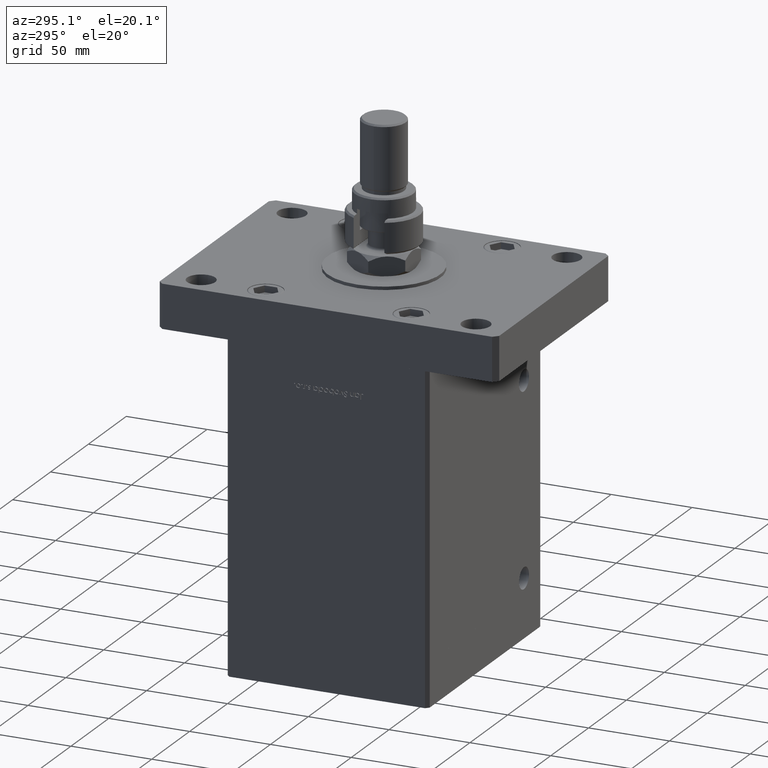
[diagram: clean part render]
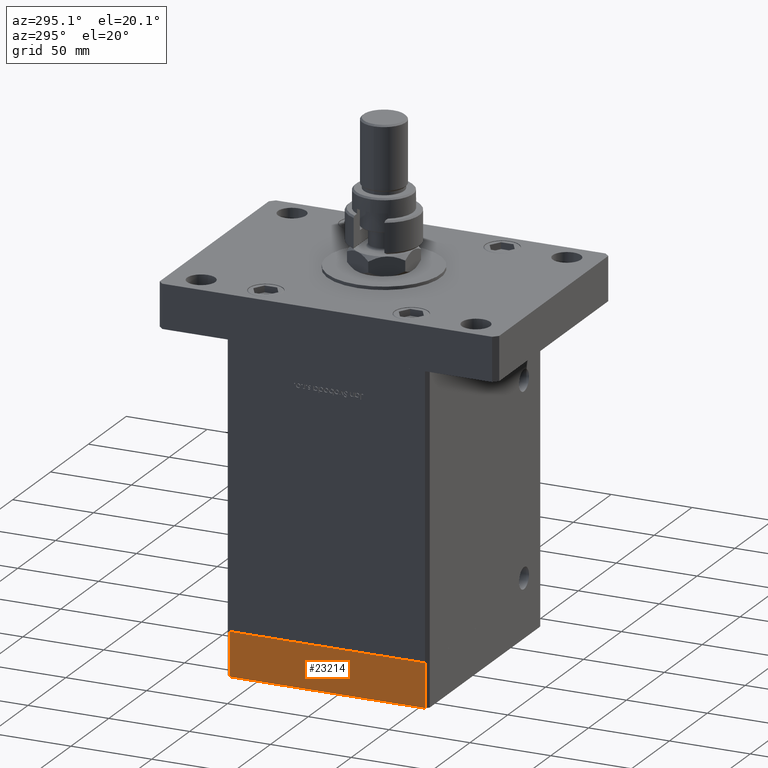
[diagram: same view with one face highlighted and labeled with its STEP entity id]
A machine part, auxiliary view. The second image highlights one B-rep face of the part: STEP entity #23214.
In plain terms, the highlighted planar face has unit normal (-1, 0, 0).
Its self-contained STEP definition (entity closure, byte-faithful):
#548 = VERTEX_POINT ( 'NONE', #55020 ) ;
#871 = CARTESIAN_POINT ( 'NONE',  ( 75.00000000000001421, -60.50000000000000711, 0.000000000000000000 ) ) ;
#964 = AXIS2_PLACEMENT_3D ( 'NONE', #1486, #18863, #12791 ) ;
#1486 = CARTESIAN_POINT ( 'NONE',  ( 75.00000000000001421, -60.50000000000000711, -27.00000000000000000 ) ) ;
#4042 = EDGE_LOOP ( 'NONE', ( #25223, #47344, #49856, #20591 ) ) ;
#4539 = DIRECTION ( 'NONE',  ( 0.000000000000000000, 0.000000000000000000, 1.000000000000000000 ) ) ;
#5819 = DIRECTION ( 'NONE',  ( -6.881547673296424104E-16, 1.000000000000000000, 0.000000000000000000 ) ) ;
#12791 = DIRECTION ( 'NONE',  ( -6.881547673296424104E-16, 1.000000000000000000, 0.000000000000000000 ) ) ;
#17629 = VECTOR ( 'NONE', #29174, 1000.000000000000000 ) ;
#18863 = DIRECTION ( 'NONE',  ( 1.000000000000000000, 6.881547673296424104E-16, -0.000000000000000000 ) ) ;
#19557 = CARTESIAN_POINT ( 'NONE',  ( 74.99999999999992895, 60.50000000000002842, -27.00000000000000000 ) ) ;
#20591 = ORIENTED_EDGE ( 'NONE', *, *, #40492, .T. ) ;
#20680 = LINE ( 'NONE', #19557, #48604 ) ;
#21460 = LINE ( 'NONE', #38870, #17629 ) ;
#22157 = VECTOR ( 'NONE', #5819, 1000.000000000000000 ) ;
#22318 = CARTESIAN_POINT ( 'NONE',  ( 74.99999999999992895, 60.50000000000002842, -27.00000000000000000 ) ) ;
#23143 = FACE_OUTER_BOUND ( 'NONE', #4042, .T. ) ;
#23214 = ADVANCED_FACE ( 'NONE', ( #23143 ), #40566, .T. ) ;
#23751 = CARTESIAN_POINT ( 'NONE',  ( 75.00000000000001421, -60.50000000000000711, 0.000000000000000000 ) ) ;
#25223 = ORIENTED_EDGE ( 'NONE', *, *, #35272, .F. ) ;
#28021 = VERTEX_POINT ( 'NONE', #871 ) ;
#29075 = VERTEX_POINT ( 'NONE', #22318 ) ;
#29174 = DIRECTION ( 'NONE',  ( -6.881547673296424104E-16, 1.000000000000000000, 0.000000000000000000 ) ) ;
#29900 = LINE ( 'NONE', #47335, #38775 ) ;
#35272 = EDGE_CURVE ( 'NONE', #28021, #42513, #44905, .T. ) ;
#36967 = DIRECTION ( 'NONE',  ( 0.000000000000000000, 0.000000000000000000, 1.000000000000000000 ) ) ;
#38775 = VECTOR ( 'NONE', #4539, 1000.000000000000000 ) ;
#38870 = CARTESIAN_POINT ( 'NONE',  ( 75.00000000000001421, -60.50000000000000711, -27.00000000000000000 ) ) ;
#40033 = EDGE_CURVE ( 'NONE', #548, #29075, #21460, .T. ) ;
#40492 = EDGE_CURVE ( 'NONE', #29075, #42513, #20680, .T. ) ;
#40566 = PLANE ( 'NONE',  #964 ) ;
#42513 = VERTEX_POINT ( 'NONE', #49749 ) ;
#44487 = EDGE_CURVE ( 'NONE', #548, #28021, #29900, .T. ) ;
#44905 = LINE ( 'NONE', #23751, #22157 ) ;
#47335 = CARTESIAN_POINT ( 'NONE',  ( 75.00000000000001421, -60.50000000000000711, -27.00000000000000000 ) ) ;
#47344 = ORIENTED_EDGE ( 'NONE', *, *, #44487, .F. ) ;
#48604 = VECTOR ( 'NONE', #36967, 1000.000000000000000 ) ;
#49749 = CARTESIAN_POINT ( 'NONE',  ( 74.99999999999992895, 60.50000000000002842, 0.000000000000000000 ) ) ;
#49856 = ORIENTED_EDGE ( 'NONE', *, *, #40033, .T. ) ;
#55020 = CARTESIAN_POINT ( 'NONE',  ( 75.00000000000001421, -60.50000000000000711, -27.00000000000000000 ) ) ;